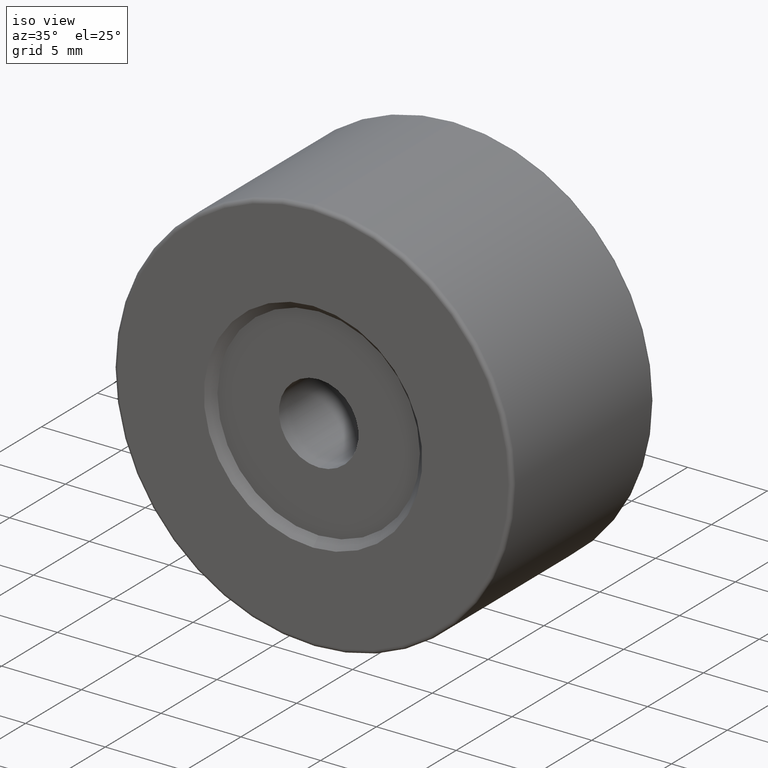
[diagram: clean part render]
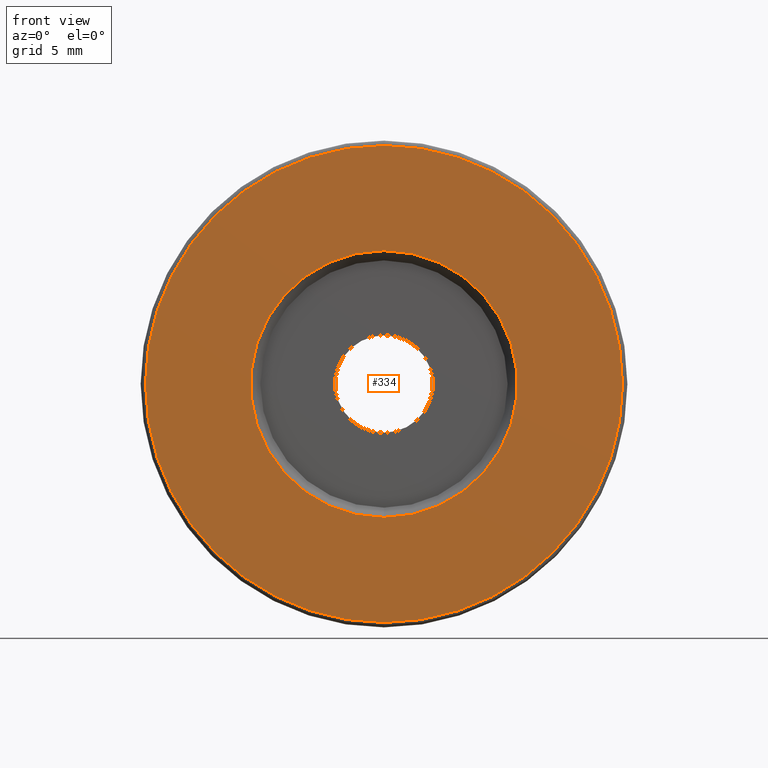
[diagram: tour spotlight — one face highlighted and labeled with its STEP entity id]
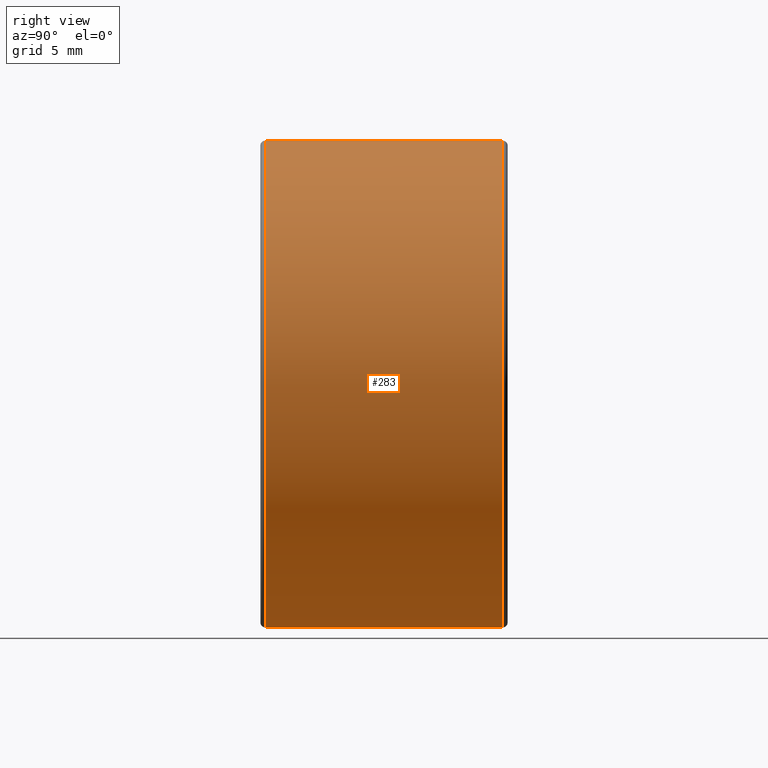
[diagram: tour spotlight — one face highlighted and labeled with its STEP entity id]
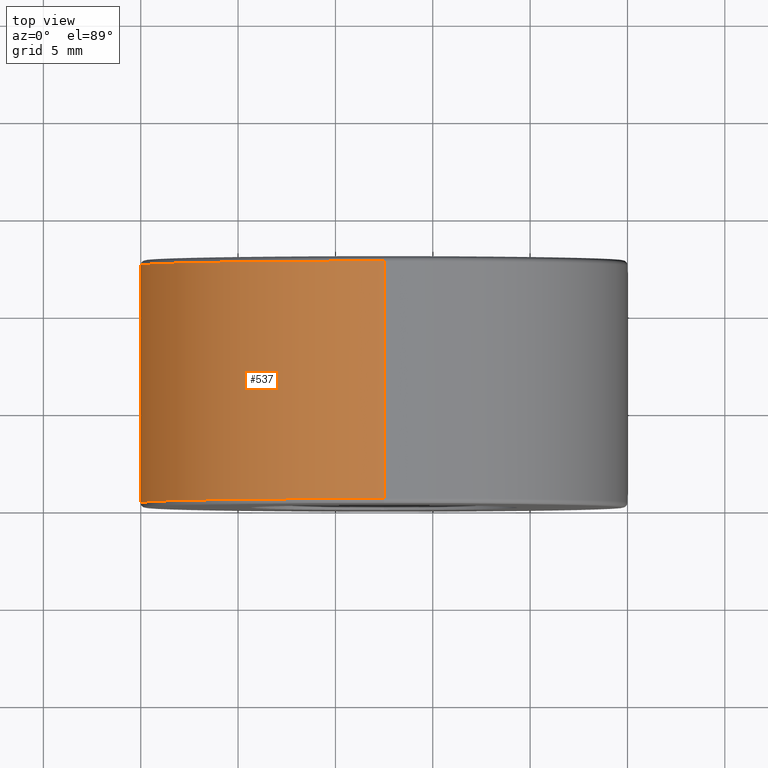
[diagram: tour spotlight — one face highlighted and labeled with its STEP entity id]
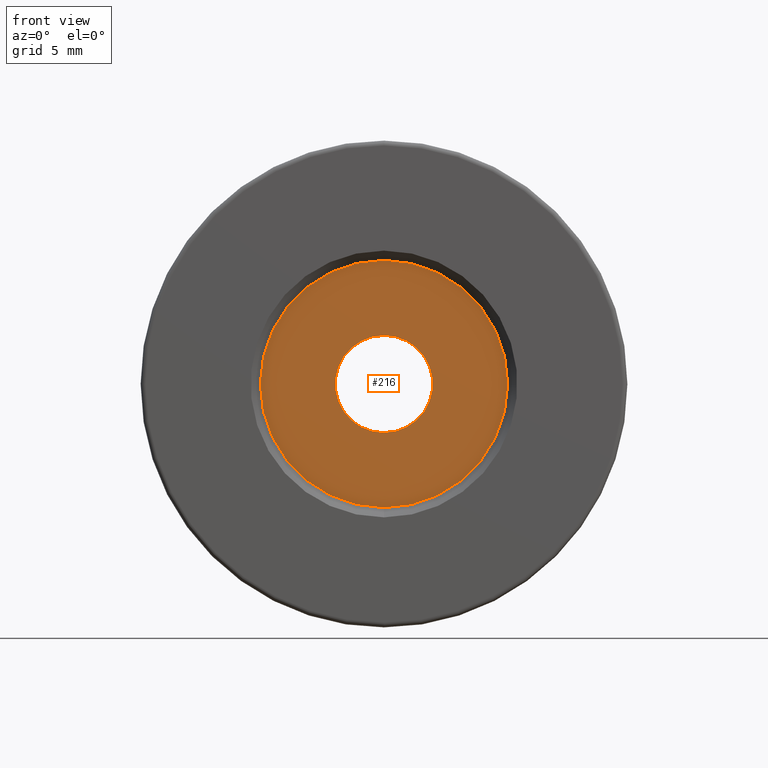
[diagram: tour spotlight — one face highlighted and labeled with its STEP entity id]
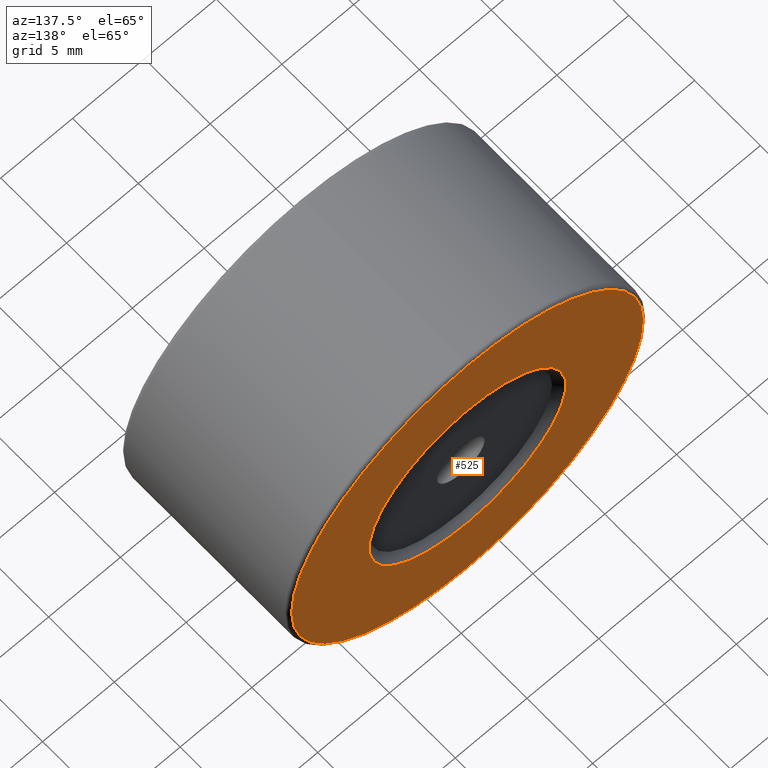
[diagram: tour spotlight — one face highlighted and labeled with its STEP entity id]
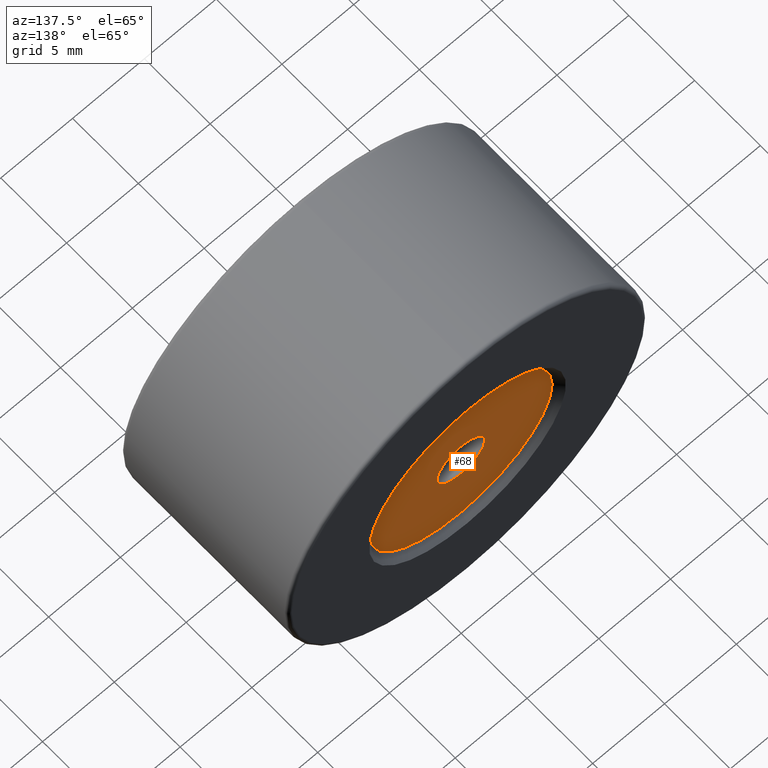
[diagram: tour spotlight — one face highlighted and labeled with its STEP entity id]
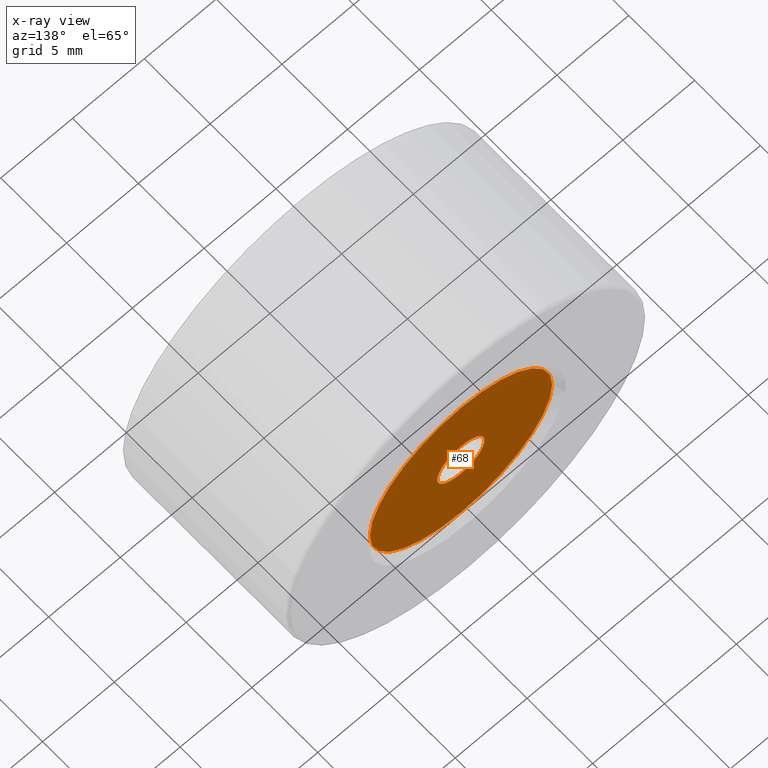
[diagram: x-ray of the same camera — body ghosted, this tour face saturated]
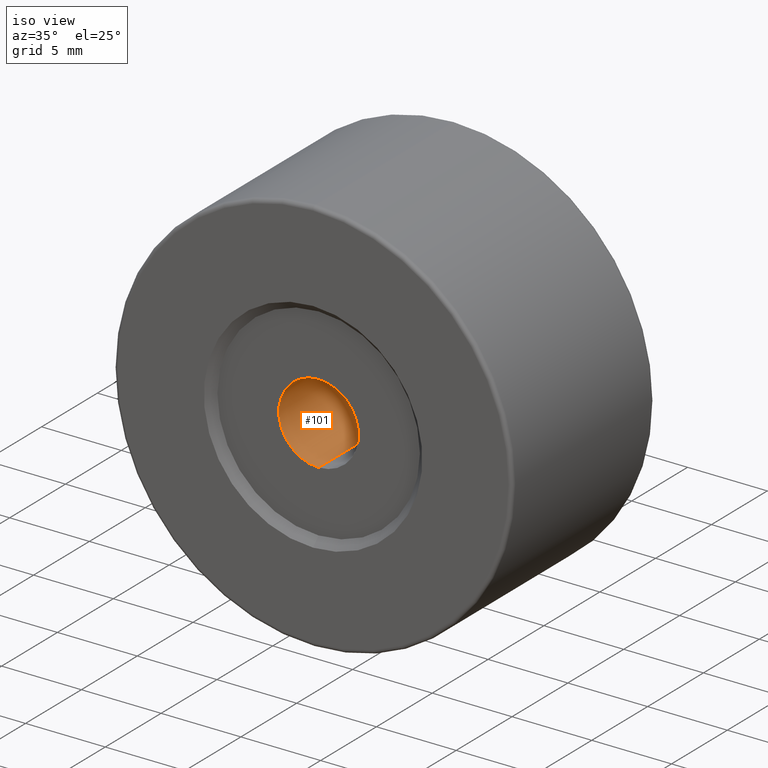
[diagram: tour spotlight — one face highlighted and labeled with its STEP entity id]
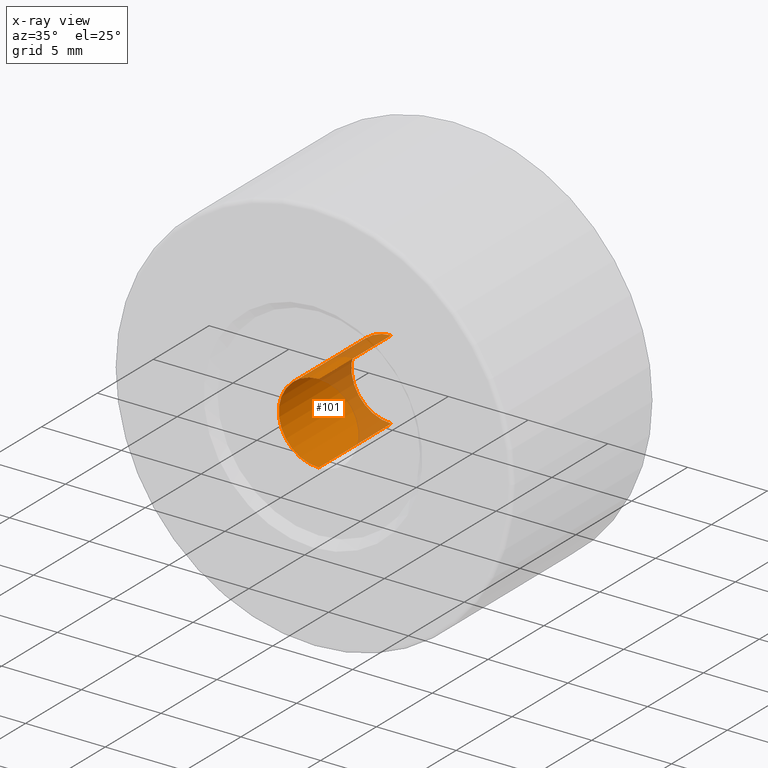
[diagram: x-ray of the same camera — body ghosted, this tour face saturated]
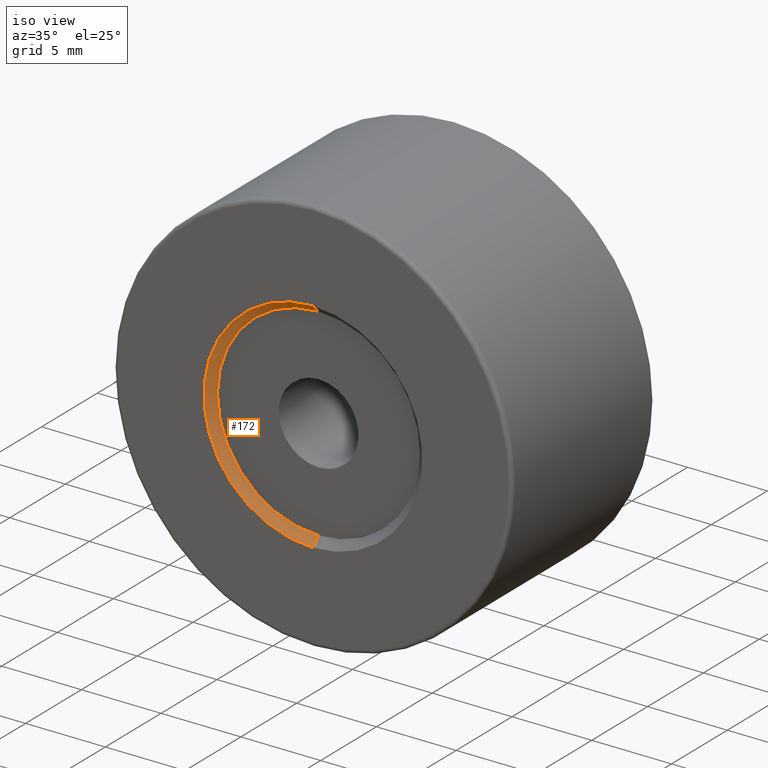
[diagram: tour spotlight — one face highlighted and labeled with its STEP entity id]
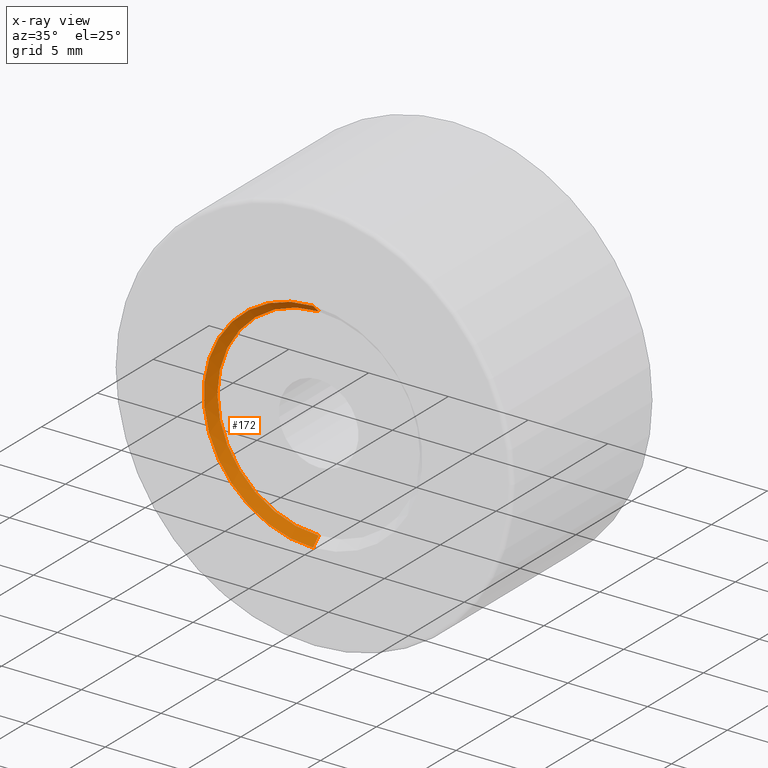
[diagram: x-ray of the same camera — body ghosted, this tour face saturated]
A machine part: a face-by-face anatomy tour. The part has 18 B-rep faces; the first image is the clean iso view, then the 8 largest visible faces are spotlighted one at a time (largest first), each with its STEP entity span.

Face 1 — front view, entity #334. In plain terms, the highlighted planar face has unit normal (0, 1, 0).
Definition (entity closure, byte-faithful):
#17 = CIRCLE ( 'NONE', #402, 6.850000000000008527 ) ;
#48 = AXIS2_PLACEMENT_3D ( 'NONE', #52, #196, #150 ) ;
#52 = CARTESIAN_POINT ( 'NONE',  ( -22.50520183104453409, -4.951747815230611138, 50.00000000000000000 ) ) ;
#54 = ORIENTED_EDGE ( 'NONE', *, *, #470, .T. ) ;
#70 = CIRCLE ( 'NONE', #48, 6.850000000000008527 ) ;
#79 = EDGE_LOOP ( 'NONE', ( #144, #453 ) ) ;
#90 = VERTEX_POINT ( 'NONE', #177 ) ;
#91 = ORIENTED_EDGE ( 'NONE', *, *, #245, .T. ) ;
#104 = PLANE ( 'NONE',  #349 ) ;
#123 = AXIS2_PLACEMENT_3D ( 'NONE', #289, #258, #579 ) ;
#138 = VERTEX_POINT ( 'NONE', #153 ) ;
#144 = ORIENTED_EDGE ( 'NONE', *, *, #547, .T. ) ;
#150 = DIRECTION ( 'NONE',  ( 0.0000000000000000000, 0.0000000000000000000, 1.000000000000000000 ) ) ;
#153 = CARTESIAN_POINT ( 'NONE',  ( -22.50520183104453409, -4.951747815230611138, 56.85000000000000853 ) ) ;
#160 = FACE_BOUND ( 'NONE', #79, .T. ) ;
#177 = CARTESIAN_POINT ( 'NONE',  ( -22.50520183104453409, -4.951747815230611138, 62.25000000000000000 ) ) ;
#178 = EDGE_CURVE ( 'NONE', #138, #499, #70, .T. ) ;
#196 = DIRECTION ( 'NONE',  ( 0.0000000000000000000, 1.000000000000000000, 0.0000000000000000000 ) ) ;
#210 = CARTESIAN_POINT ( 'NONE',  ( -22.50520183104453409, -4.951747815230611138, 50.00000000000000000 ) ) ;
#240 = EDGE_LOOP ( 'NONE', ( #91, #54 ) ) ;
#245 = EDGE_CURVE ( 'NONE', #90, #339, #374, .T. ) ;
#258 = DIRECTION ( 'NONE',  ( -0.0000000000000000000, -1.000000000000000000, -0.0000000000000000000 ) ) ;
#281 = DIRECTION ( 'NONE',  ( 0.0000000000000000000, 1.000000000000000000, 0.0000000000000000000 ) ) ;
#289 = CARTESIAN_POINT ( 'NONE',  ( -22.50520183104453409, -4.951747815230611138, 50.00000000000000000 ) ) ;
#320 = AXIS2_PLACEMENT_3D ( 'NONE', #569, #437, #386 ) ;
#328 = CARTESIAN_POINT ( 'NONE',  ( -22.50520183104453409, -4.951747815230611138, 50.00000000000000000 ) ) ;
#334 = ADVANCED_FACE ( 'NONE', ( #558, #160 ), #104, .F. ) ;
#339 = VERTEX_POINT ( 'NONE', #461 ) ;
#341 = CARTESIAN_POINT ( 'NONE',  ( -22.50520183104453409, -4.951747815230611138, 43.14999999999999147 ) ) ;
#349 = AXIS2_PLACEMENT_3D ( 'NONE', #328, #281, #512 ) ;
#374 = CIRCLE ( 'NONE', #123, 12.24999999999999645 ) ;
#386 = DIRECTION ( 'NONE',  ( 0.0000000000000000000, 0.0000000000000000000, 1.000000000000000000 ) ) ;
#402 = AXIS2_PLACEMENT_3D ( 'NONE', #210, #565, #532 ) ;
#437 = DIRECTION ( 'NONE',  ( -0.0000000000000000000, -1.000000000000000000, -0.0000000000000000000 ) ) ;
#453 = ORIENTED_EDGE ( 'NONE', *, *, #178, .T. ) ;
#461 = CARTESIAN_POINT ( 'NONE',  ( -22.50520183104453409, -4.951747815230611138, 37.75000000000000711 ) ) ;
#470 = EDGE_CURVE ( 'NONE', #339, #90, #521, .T. ) ;
#499 = VERTEX_POINT ( 'NONE', #341 ) ;
#512 = DIRECTION ( 'NONE',  ( 0.0000000000000000000, -0.0000000000000000000, 1.000000000000000000 ) ) ;
#521 = CIRCLE ( 'NONE', #320, 12.24999999999999645 ) ;
#532 = DIRECTION ( 'NONE',  ( 0.0000000000000000000, 0.0000000000000000000, 1.000000000000000000 ) ) ;
#547 = EDGE_CURVE ( 'NONE', #499, #138, #17, .T. ) ;
#558 = FACE_OUTER_BOUND ( 'NONE', #240, .T. ) ;
#565 = DIRECTION ( 'NONE',  ( 0.0000000000000000000, 1.000000000000000000, 0.0000000000000000000 ) ) ;
#569 = CARTESIAN_POINT ( 'NONE',  ( -22.50520183104453409, -4.951747815230611138, 50.00000000000000000 ) ) ;
#579 = DIRECTION ( 'NONE',  ( 0.0000000000000000000, 0.0000000000000000000, 1.000000000000000000 ) ) ;

Face 2 — right view, entity #283. In plain terms, the highlighted cylindrical surface (partial cylindrical patch) has radius 12.5 mm, axis along (-0, -1, -0).
Definition (entity closure, byte-faithful):
#2 = VERTEX_POINT ( 'NONE', #131 ) ;
#13 = DIRECTION ( 'NONE',  ( 0.0000000000000000000, 1.000000000000000000, 0.0000000000000000000 ) ) ;
#21 = LINE ( 'NONE', #56, #271 ) ;
#40 = EDGE_LOOP ( 'NONE', ( #100, #548, #45, #186 ) ) ;
#45 = ORIENTED_EDGE ( 'NONE', *, *, #115, .T. ) ;
#56 = CARTESIAN_POINT ( 'NONE',  ( -22.50520183104453409, 7.748252184769388151, 62.50000000000000000 ) ) ;
#60 = DIRECTION ( 'NONE',  ( 0.0000000000000000000, 0.0000000000000000000, 1.000000000000000000 ) ) ;
#73 = DIRECTION ( 'NONE',  ( -0.0000000000000000000, -1.000000000000000000, -0.0000000000000000000 ) ) ;
#85 = AXIS2_PLACEMENT_3D ( 'NONE', #441, #73, #253 ) ;
#100 = ORIENTED_EDGE ( 'NONE', *, *, #530, .T. ) ;
#106 = DIRECTION ( 'NONE',  ( 0.0000000000000000000, 0.0000000000000000000, -1.000000000000000000 ) ) ;
#115 = EDGE_CURVE ( 'NONE', #136, #180, #382, .T. ) ;
#131 = CARTESIAN_POINT ( 'NONE',  ( -22.50520183104453409, 7.498252184769387263, 62.50000000000000000 ) ) ;
#136 = VERTEX_POINT ( 'NONE', #201 ) ;
#180 = VERTEX_POINT ( 'NONE', #326 ) ;
#186 = ORIENTED_EDGE ( 'NONE', *, *, #377, .F. ) ;
#199 = LINE ( 'NONE', #370, #502 ) ;
#201 = CARTESIAN_POINT ( 'NONE',  ( -22.50520183104453409, -4.701747815230611138, 62.50000000000000000 ) ) ;
#253 = DIRECTION ( 'NONE',  ( 0.0000000000000000000, 0.0000000000000000000, 1.000000000000000000 ) ) ;
#271 = VECTOR ( 'NONE', #287, 1000.000000000000000 ) ;
#283 = ADVANCED_FACE ( 'NONE', ( #373 ), #429, .T. ) ;
#284 = DIRECTION ( 'NONE',  ( -0.0000000000000000000, -1.000000000000000000, -0.0000000000000000000 ) ) ;
#285 = AXIS2_PLACEMENT_3D ( 'NONE', #338, #13, #60 ) ;
#287 = DIRECTION ( 'NONE',  ( -0.0000000000000000000, -1.000000000000000000, -0.0000000000000000000 ) ) ;
#293 = EDGE_CURVE ( 'NONE', #2, #136, #21, .T. ) ;
#323 = CARTESIAN_POINT ( 'NONE',  ( -22.50520183104453409, 7.748252184769388151, 50.00000000000000000 ) ) ;
#326 = CARTESIAN_POINT ( 'NONE',  ( -22.50520183104453409, -4.701747815230611138, 37.50000000000000711 ) ) ;
#338 = CARTESIAN_POINT ( 'NONE',  ( -22.50520183104453409, -4.701747815230611138, 50.00000000000000000 ) ) ;
#353 = CARTESIAN_POINT ( 'NONE',  ( -22.50520183104453409, 7.498252184769387263, 37.50000000000000711 ) ) ;
#370 = CARTESIAN_POINT ( 'NONE',  ( -22.50520183104453409, 7.748252184769388151, 37.50000000000000711 ) ) ;
#373 = FACE_OUTER_BOUND ( 'NONE', #40, .T. ) ;
#377 = EDGE_CURVE ( 'NONE', #545, #180, #199, .T. ) ;
#382 = CIRCLE ( 'NONE', #285, 12.49999999999999645 ) ;
#429 = CYLINDRICAL_SURFACE ( 'NONE', #475, 12.49999999999999645 ) ;
#441 = CARTESIAN_POINT ( 'NONE',  ( -22.50520183104453409, 7.498252184769387263, 50.00000000000000000 ) ) ;
#469 = CIRCLE ( 'NONE', #85, 12.49999999999999645 ) ;
#475 = AXIS2_PLACEMENT_3D ( 'NONE', #323, #554, #106 ) ;
#502 = VECTOR ( 'NONE', #284, 1000.000000000000000 ) ;
#530 = EDGE_CURVE ( 'NONE', #545, #2, #469, .T. ) ;
#545 = VERTEX_POINT ( 'NONE', #353 ) ;
#548 = ORIENTED_EDGE ( 'NONE', *, *, #293, .T. ) ;
#554 = DIRECTION ( 'NONE',  ( -0.0000000000000000000, -1.000000000000000000, -0.0000000000000000000 ) ) ;

Face 3 — top view, entity #537. In plain terms, the highlighted cylindrical surface (partial cylindrical patch) has radius 12.5 mm, axis along (-0, -1, -0).
Definition (entity closure, byte-faithful):
#2 = VERTEX_POINT ( 'NONE', #131 ) ;
#21 = LINE ( 'NONE', #56, #271 ) ;
#23 = DIRECTION ( 'NONE',  ( -0.0000000000000000000, -1.000000000000000000, -0.0000000000000000000 ) ) ;
#38 = DIRECTION ( 'NONE',  ( 0.0000000000000000000, 1.000000000000000000, 0.0000000000000000000 ) ) ;
#56 = CARTESIAN_POINT ( 'NONE',  ( -22.50520183104453409, 7.748252184769388151, 62.50000000000000000 ) ) ;
#69 = DIRECTION ( 'NONE',  ( -0.0000000000000000000, -1.000000000000000000, -0.0000000000000000000 ) ) ;
#72 = AXIS2_PLACEMENT_3D ( 'NONE', #337, #38, #395 ) ;
#131 = CARTESIAN_POINT ( 'NONE',  ( -22.50520183104453409, 7.498252184769387263, 62.50000000000000000 ) ) ;
#136 = VERTEX_POINT ( 'NONE', #201 ) ;
#167 = FACE_OUTER_BOUND ( 'NONE', #544, .T. ) ;
#176 = CARTESIAN_POINT ( 'NONE',  ( -22.50520183104453409, 7.748252184769388151, 50.00000000000000000 ) ) ;
#180 = VERTEX_POINT ( 'NONE', #326 ) ;
#195 = ORIENTED_EDGE ( 'NONE', *, *, #551, .T. ) ;
#199 = LINE ( 'NONE', #370, #502 ) ;
#201 = CARTESIAN_POINT ( 'NONE',  ( -22.50520183104453409, -4.701747815230611138, 62.50000000000000000 ) ) ;
#224 = AXIS2_PLACEMENT_3D ( 'NONE', #176, #23, #444 ) ;
#265 = ORIENTED_EDGE ( 'NONE', *, *, #377, .T. ) ;
#271 = VECTOR ( 'NONE', #287, 1000.000000000000000 ) ;
#284 = DIRECTION ( 'NONE',  ( -0.0000000000000000000, -1.000000000000000000, -0.0000000000000000000 ) ) ;
#287 = DIRECTION ( 'NONE',  ( -0.0000000000000000000, -1.000000000000000000, -0.0000000000000000000 ) ) ;
#293 = EDGE_CURVE ( 'NONE', #2, #136, #21, .T. ) ;
#326 = CARTESIAN_POINT ( 'NONE',  ( -22.50520183104453409, -4.701747815230611138, 37.50000000000000711 ) ) ;
#337 = CARTESIAN_POINT ( 'NONE',  ( -22.50520183104453409, -4.701747815230611138, 50.00000000000000000 ) ) ;
#343 = DIRECTION ( 'NONE',  ( 0.0000000000000000000, 0.0000000000000000000, 1.000000000000000000 ) ) ;
#345 = ORIENTED_EDGE ( 'NONE', *, *, #492, .T. ) ;
#353 = CARTESIAN_POINT ( 'NONE',  ( -22.50520183104453409, 7.498252184769387263, 37.50000000000000711 ) ) ;
#361 = CIRCLE ( 'NONE', #72, 12.49999999999999645 ) ;
#370 = CARTESIAN_POINT ( 'NONE',  ( -22.50520183104453409, 7.748252184769388151, 37.50000000000000711 ) ) ;
#377 = EDGE_CURVE ( 'NONE', #545, #180, #199, .T. ) ;
#395 = DIRECTION ( 'NONE',  ( 0.0000000000000000000, 0.0000000000000000000, 1.000000000000000000 ) ) ;
#419 = CIRCLE ( 'NONE', #426, 12.49999999999999645 ) ;
#426 = AXIS2_PLACEMENT_3D ( 'NONE', #562, #69, #343 ) ;
#431 = CYLINDRICAL_SURFACE ( 'NONE', #224, 12.49999999999999645 ) ;
#444 = DIRECTION ( 'NONE',  ( 0.0000000000000000000, 0.0000000000000000000, -1.000000000000000000 ) ) ;
#479 = ORIENTED_EDGE ( 'NONE', *, *, #293, .F. ) ;
#492 = EDGE_CURVE ( 'NONE', #180, #136, #361, .T. ) ;
#502 = VECTOR ( 'NONE', #284, 1000.000000000000000 ) ;
#537 = ADVANCED_FACE ( 'NONE', ( #167 ), #431, .T. ) ;
#544 = EDGE_LOOP ( 'NONE', ( #479, #195, #265, #345 ) ) ;
#545 = VERTEX_POINT ( 'NONE', #353 ) ;
#551 = EDGE_CURVE ( 'NONE', #2, #545, #419, .T. ) ;
#562 = CARTESIAN_POINT ( 'NONE',  ( -22.50520183104453409, 7.498252184769387263, 50.00000000000000000 ) ) ;

Face 4 — front view, entity #216. In plain terms, the highlighted planar face has unit normal (0, -1, 0).
Definition (entity closure, byte-faithful):
#15 = CARTESIAN_POINT ( 'NONE',  ( -22.50520183104453409, -4.451747815230611138, 50.00000000000000000 ) ) ;
#16 = CIRCLE ( 'NONE', #318, 2.499999999999995115 ) ;
#37 = AXIS2_PLACEMENT_3D ( 'NONE', #477, #76, #292 ) ;
#71 = CIRCLE ( 'NONE', #329, 6.350000000000001421 ) ;
#76 = DIRECTION ( 'NONE',  ( -0.0000000000000000000, 1.000000000000000000, -0.0000000000000000000 ) ) ;
#108 = CARTESIAN_POINT ( 'NONE',  ( -22.50520183104453409, -4.451747815230611138, 47.50000000000000711 ) ) ;
#135 = DIRECTION ( 'NONE',  ( 0.0000000000000000000, 0.0000000000000000000, 1.000000000000000000 ) ) ;
#152 = ORIENTED_EDGE ( 'NONE', *, *, #237, .F. ) ;
#154 = CARTESIAN_POINT ( 'NONE',  ( -22.50520183104453409, -4.451747815230611138, 50.00000000000000000 ) ) ;
#161 = CIRCLE ( 'NONE', #264, 2.499999999999995115 ) ;
#206 = DIRECTION ( 'NONE',  ( -0.0000000000000000000, 1.000000000000000000, -0.0000000000000000000 ) ) ;
#208 = DIRECTION ( 'NONE',  ( 0.0000000000000000000, -1.000000000000000000, 0.0000000000000000000 ) ) ;
#216 = ADVANCED_FACE ( 'NONE', ( #294, #476 ), #394, .T. ) ;
#231 = ORIENTED_EDGE ( 'NONE', *, *, #327, .F. ) ;
#233 = ORIENTED_EDGE ( 'NONE', *, *, #458, .F. ) ;
#237 = EDGE_CURVE ( 'NONE', #304, #404, #161, .T. ) ;
#264 = AXIS2_PLACEMENT_3D ( 'NONE', #391, #300, #478 ) ;
#269 = VERTEX_POINT ( 'NONE', #428 ) ;
#292 = DIRECTION ( 'NONE',  ( 0.0000000000000000000, 0.0000000000000000000, 1.000000000000000000 ) ) ;
#294 = FACE_BOUND ( 'NONE', #439, .T. ) ;
#295 = AXIS2_PLACEMENT_3D ( 'NONE', #483, #535, #135 ) ;
#300 = DIRECTION ( 'NONE',  ( 0.0000000000000000000, -1.000000000000000000, 0.0000000000000000000 ) ) ;
#304 = VERTEX_POINT ( 'NONE', #108 ) ;
#318 = AXIS2_PLACEMENT_3D ( 'NONE', #154, #208, #471 ) ;
#319 = ORIENTED_EDGE ( 'NONE', *, *, #415, .F. ) ;
#327 = EDGE_CURVE ( 'NONE', #404, #304, #16, .T. ) ;
#329 = AXIS2_PLACEMENT_3D ( 'NONE', #15, #206, #378 ) ;
#369 = VERTEX_POINT ( 'NONE', #557 ) ;
#378 = DIRECTION ( 'NONE',  ( 0.0000000000000000000, 0.0000000000000000000, 1.000000000000000000 ) ) ;
#391 = CARTESIAN_POINT ( 'NONE',  ( -22.50520183104453409, -4.451747815230611138, 50.00000000000000000 ) ) ;
#394 = PLANE ( 'NONE',  #295 ) ;
#404 = VERTEX_POINT ( 'NONE', #421 ) ;
#406 = EDGE_LOOP ( 'NONE', ( #233, #319 ) ) ;
#415 = EDGE_CURVE ( 'NONE', #269, #369, #71, .T. ) ;
#421 = CARTESIAN_POINT ( 'NONE',  ( -22.50520183104453409, -4.451747815230611138, 52.50000000000000000 ) ) ;
#428 = CARTESIAN_POINT ( 'NONE',  ( -22.50520183104453409, -4.451747815230611138, 56.35000000000000142 ) ) ;
#434 = CIRCLE ( 'NONE', #37, 6.350000000000001421 ) ;
#439 = EDGE_LOOP ( 'NONE', ( #152, #231 ) ) ;
#458 = EDGE_CURVE ( 'NONE', #369, #269, #434, .T. ) ;
#471 = DIRECTION ( 'NONE',  ( 0.0000000000000000000, 0.0000000000000000000, -1.000000000000000000 ) ) ;
#476 = FACE_OUTER_BOUND ( 'NONE', #406, .T. ) ;
#477 = CARTESIAN_POINT ( 'NONE',  ( -22.50520183104453409, -4.451747815230611138, 50.00000000000000000 ) ) ;
#478 = DIRECTION ( 'NONE',  ( 0.0000000000000000000, 0.0000000000000000000, -1.000000000000000000 ) ) ;
#483 = CARTESIAN_POINT ( 'NONE',  ( -22.50520183104453409, -4.451747815230611138, 50.00000000000000000 ) ) ;
#535 = DIRECTION ( 'NONE',  ( 0.0000000000000000000, -1.000000000000000000, 0.0000000000000000000 ) ) ;
#557 = CARTESIAN_POINT ( 'NONE',  ( -22.50520183104453409, -4.451747815230611138, 43.64999999999999858 ) ) ;

Face 5 — auxiliary view, entity #525. In plain terms, the highlighted planar face has unit normal (0, 1, 0).
Definition (entity closure, byte-faithful):
#1 = ORIENTED_EDGE ( 'NONE', *, *, #139, .T. ) ;
#8 = EDGE_CURVE ( 'NONE', #413, #174, #272, .T. ) ;
#11 = CARTESIAN_POINT ( 'NONE',  ( -22.50520183104453409, 7.748252184769388151, 56.85000000000000853 ) ) ;
#14 = DIRECTION ( 'NONE',  ( 0.0000000000000000000, 0.0000000000000000000, 1.000000000000000000 ) ) ;
#30 = ORIENTED_EDGE ( 'NONE', *, *, #8, .T. ) ;
#31 = CIRCLE ( 'NONE', #364, 6.850000000000008527 ) ;
#43 = EDGE_LOOP ( 'NONE', ( #352, #1 ) ) ;
#49 = CIRCLE ( 'NONE', #555, 6.850000000000008527 ) ;
#65 = AXIS2_PLACEMENT_3D ( 'NONE', #472, #473, #221 ) ;
#105 = DIRECTION ( 'NONE',  ( -0.0000000000000000000, -1.000000000000000000, -0.0000000000000000000 ) ) ;
#133 = FACE_BOUND ( 'NONE', #43, .T. ) ;
#139 = EDGE_CURVE ( 'NONE', #190, #357, #31, .T. ) ;
#146 = AXIS2_PLACEMENT_3D ( 'NONE', #305, #215, #408 ) ;
#157 = DIRECTION ( 'NONE',  ( -0.0000000000000000000, -1.000000000000000000, -0.0000000000000000000 ) ) ;
#174 = VERTEX_POINT ( 'NONE', #344 ) ;
#190 = VERTEX_POINT ( 'NONE', #480 ) ;
#215 = DIRECTION ( 'NONE',  ( 0.0000000000000000000, 1.000000000000000000, 0.0000000000000000000 ) ) ;
#221 = DIRECTION ( 'NONE',  ( 0.0000000000000000000, -0.0000000000000000000, 1.000000000000000000 ) ) ;
#244 = CARTESIAN_POINT ( 'NONE',  ( -22.50520183104453409, 7.748252184769388151, 50.00000000000000000 ) ) ;
#246 = DIRECTION ( 'NONE',  ( 0.0000000000000000000, 1.000000000000000000, 0.0000000000000000000 ) ) ;
#259 = PLANE ( 'NONE',  #65 ) ;
#272 = CIRCLE ( 'NONE', #146, 12.24999999999999645 ) ;
#305 = CARTESIAN_POINT ( 'NONE',  ( -22.50520183104453409, 7.748252184769388151, 50.00000000000000000 ) ) ;
#307 = ORIENTED_EDGE ( 'NONE', *, *, #381, .T. ) ;
#340 = EDGE_CURVE ( 'NONE', #357, #190, #49, .T. ) ;
#344 = CARTESIAN_POINT ( 'NONE',  ( -22.50520183104453409, 7.748252184769388151, 62.25000000000000000 ) ) ;
#352 = ORIENTED_EDGE ( 'NONE', *, *, #340, .T. ) ;
#357 = VERTEX_POINT ( 'NONE', #11 ) ;
#364 = AXIS2_PLACEMENT_3D ( 'NONE', #509, #105, #372 ) ;
#366 = EDGE_LOOP ( 'NONE', ( #307, #30 ) ) ;
#372 = DIRECTION ( 'NONE',  ( 0.0000000000000000000, 0.0000000000000000000, 1.000000000000000000 ) ) ;
#381 = EDGE_CURVE ( 'NONE', #174, #413, #454, .T. ) ;
#408 = DIRECTION ( 'NONE',  ( 0.0000000000000000000, 0.0000000000000000000, 1.000000000000000000 ) ) ;
#413 = VERTEX_POINT ( 'NONE', #423 ) ;
#423 = CARTESIAN_POINT ( 'NONE',  ( -22.50520183104453409, 7.748252184769388151, 37.75000000000000711 ) ) ;
#435 = FACE_OUTER_BOUND ( 'NONE', #366, .T. ) ;
#454 = CIRCLE ( 'NONE', #527, 12.24999999999999645 ) ;
#472 = CARTESIAN_POINT ( 'NONE',  ( -22.50520183104453409, 7.748252184769388151, 50.00000000000000000 ) ) ;
#473 = DIRECTION ( 'NONE',  ( 0.0000000000000000000, 1.000000000000000000, 0.0000000000000000000 ) ) ;
#480 = CARTESIAN_POINT ( 'NONE',  ( -22.50520183104453409, 7.748252184769388151, 43.14999999999999147 ) ) ;
#509 = CARTESIAN_POINT ( 'NONE',  ( -22.50520183104453409, 7.748252184769388151, 50.00000000000000000 ) ) ;
#511 = DIRECTION ( 'NONE',  ( 0.0000000000000000000, 0.0000000000000000000, 1.000000000000000000 ) ) ;
#525 = ADVANCED_FACE ( 'NONE', ( #435, #133 ), #259, .T. ) ;
#527 = AXIS2_PLACEMENT_3D ( 'NONE', #552, #246, #511 ) ;
#552 = CARTESIAN_POINT ( 'NONE',  ( -22.50520183104453409, 7.748252184769388151, 50.00000000000000000 ) ) ;
#555 = AXIS2_PLACEMENT_3D ( 'NONE', #244, #157, #14 ) ;

Face 6 — auxiliary view, entity #68. An x-ray twin of the same camera follows (body ghosted, this face saturated) — the face is partly hidden behind the body. In plain terms, the highlighted planar face has unit normal (0, 1, 0).
Definition (entity closure, byte-faithful):
#7 = CIRCLE ( 'NONE', #351, 1.649999999999998579 ) ;
#22 = ORIENTED_EDGE ( 'NONE', *, *, #513, .F. ) ;
#27 = DIRECTION ( 'NONE',  ( 0.0000000000000000000, 0.0000000000000000000, 1.000000000000000000 ) ) ;
#33 = VERTEX_POINT ( 'NONE', #228 ) ;
#35 = FACE_OUTER_BOUND ( 'NONE', #430, .T. ) ;
#39 = DIRECTION ( 'NONE',  ( 0.0000000000000000000, -0.0000000000000000000, 1.000000000000000000 ) ) ;
#42 = AXIS2_PLACEMENT_3D ( 'NONE', #171, #482, #39 ) ;
#55 = VERTEX_POINT ( 'NONE', #77 ) ;
#68 = ADVANCED_FACE ( 'NONE', ( #442, #35 ), #222, .T. ) ;
#75 = CARTESIAN_POINT ( 'NONE',  ( -22.50520183104453409, 7.248252184769387263, 48.35000000000000142 ) ) ;
#77 = CARTESIAN_POINT ( 'NONE',  ( -22.50520183104453409, 7.248252184769387263, 56.35000000000000142 ) ) ;
#107 = CIRCLE ( 'NONE', #274, 1.649999999999998579 ) ;
#127 = DIRECTION ( 'NONE',  ( 0.0000000000000000000, 0.0000000000000000000, 1.000000000000000000 ) ) ;
#147 = AXIS2_PLACEMENT_3D ( 'NONE', #170, #481, #127 ) ;
#166 = VERTEX_POINT ( 'NONE', #255 ) ;
#170 = CARTESIAN_POINT ( 'NONE',  ( -22.50520183104453409, 7.248252184769387263, 50.00000000000000000 ) ) ;
#171 = CARTESIAN_POINT ( 'NONE',  ( -22.50520183104453409, 7.248252184769387263, 50.00000000000000000 ) ) ;
#191 = VERTEX_POINT ( 'NONE', #75 ) ;
#200 = EDGE_CURVE ( 'NONE', #55, #33, #270, .T. ) ;
#219 = DIRECTION ( 'NONE',  ( 0.0000000000000000000, 1.000000000000000000, 0.0000000000000000000 ) ) ;
#222 = PLANE ( 'NONE',  #42 ) ;
#226 = DIRECTION ( 'NONE',  ( 0.0000000000000000000, 1.000000000000000000, 0.0000000000000000000 ) ) ;
#228 = CARTESIAN_POINT ( 'NONE',  ( -22.50520183104453409, 7.248252184769387263, 43.64999999999999858 ) ) ;
#242 = EDGE_LOOP ( 'NONE', ( #22, #536 ) ) ;
#255 = CARTESIAN_POINT ( 'NONE',  ( -22.50520183104453409, 7.248252184769387263, 51.64999999999999858 ) ) ;
#270 = CIRCLE ( 'NONE', #424, 6.350000000000001421 ) ;
#274 = AXIS2_PLACEMENT_3D ( 'NONE', #522, #226, #528 ) ;
#290 = CARTESIAN_POINT ( 'NONE',  ( -22.50520183104453409, 7.248252184769387263, 50.00000000000000000 ) ) ;
#351 = AXIS2_PLACEMENT_3D ( 'NONE', #290, #523, #389 ) ;
#389 = DIRECTION ( 'NONE',  ( 0.0000000000000000000, 0.0000000000000000000, 1.000000000000000000 ) ) ;
#392 = ORIENTED_EDGE ( 'NONE', *, *, #503, .T. ) ;
#416 = ORIENTED_EDGE ( 'NONE', *, *, #200, .T. ) ;
#424 = AXIS2_PLACEMENT_3D ( 'NONE', #440, #219, #27 ) ;
#430 = EDGE_LOOP ( 'NONE', ( #416, #392 ) ) ;
#440 = CARTESIAN_POINT ( 'NONE',  ( -22.50520183104453409, 7.248252184769387263, 50.00000000000000000 ) ) ;
#442 = FACE_BOUND ( 'NONE', #242, .T. ) ;
#481 = DIRECTION ( 'NONE',  ( 0.0000000000000000000, 1.000000000000000000, 0.0000000000000000000 ) ) ;
#482 = DIRECTION ( 'NONE',  ( 0.0000000000000000000, 1.000000000000000000, 0.0000000000000000000 ) ) ;
#494 = CIRCLE ( 'NONE', #147, 6.350000000000001421 ) ;
#503 = EDGE_CURVE ( 'NONE', #33, #55, #494, .T. ) ;
#510 = EDGE_CURVE ( 'NONE', #191, #166, #107, .T. ) ;
#513 = EDGE_CURVE ( 'NONE', #166, #191, #7, .T. ) ;
#522 = CARTESIAN_POINT ( 'NONE',  ( -22.50520183104453409, 7.248252184769387263, 50.00000000000000000 ) ) ;
#523 = DIRECTION ( 'NONE',  ( 0.0000000000000000000, 1.000000000000000000, 0.0000000000000000000 ) ) ;
#528 = DIRECTION ( 'NONE',  ( 0.0000000000000000000, 0.0000000000000000000, 1.000000000000000000 ) ) ;
#536 = ORIENTED_EDGE ( 'NONE', *, *, #510, .F. ) ;

Face 7 — iso view, entity #101. An x-ray twin of the same camera follows (body ghosted, this face saturated) — the face is partly hidden behind the body. In plain terms, the highlighted cylindrical surface (partial cylindrical patch) has radius 2.5 mm, axis along (-0, -1, -0).
Definition (entity closure, byte-faithful):
#5 = ORIENTED_EDGE ( 'NONE', *, *, #81, .T. ) ;
#16 = CIRCLE ( 'NONE', #318, 2.499999999999995115 ) ;
#32 = DIRECTION ( 'NONE',  ( -0.0000000000000000000, -1.000000000000000000, -0.0000000000000000000 ) ) ;
#61 = DIRECTION ( 'NONE',  ( -0.0000000000000000000, -1.000000000000000000, -0.0000000000000000000 ) ) ;
#81 = EDGE_CURVE ( 'NONE', #213, #404, #529, .T. ) ;
#83 = DIRECTION ( 'NONE',  ( 0.0000000000000000000, 0.0000000000000000000, -1.000000000000000000 ) ) ;
#88 = ORIENTED_EDGE ( 'NONE', *, *, #354, .F. ) ;
#101 = ADVANCED_FACE ( 'NONE', ( #306 ), #128, .F. ) ;
#103 = AXIS2_PLACEMENT_3D ( 'NONE', #383, #420, #158 ) ;
#108 = CARTESIAN_POINT ( 'NONE',  ( -22.50520183104453409, -4.451747815230611138, 47.50000000000000711 ) ) ;
#121 = CIRCLE ( 'NONE', #103, 2.499999999999995115 ) ;
#128 = CYLINDRICAL_SURFACE ( 'NONE', #214, 2.499999999999995115 ) ;
#154 = CARTESIAN_POINT ( 'NONE',  ( -22.50520183104453409, -4.451747815230611138, 50.00000000000000000 ) ) ;
#158 = DIRECTION ( 'NONE',  ( 0.0000000000000000000, 0.0000000000000000000, -1.000000000000000000 ) ) ;
#208 = DIRECTION ( 'NONE',  ( 0.0000000000000000000, -1.000000000000000000, 0.0000000000000000000 ) ) ;
#213 = VERTEX_POINT ( 'NONE', #517 ) ;
#214 = AXIS2_PLACEMENT_3D ( 'NONE', #488, #32, #83 ) ;
#227 = VERTEX_POINT ( 'NONE', #298 ) ;
#256 = EDGE_CURVE ( 'NONE', #213, #227, #121, .T. ) ;
#297 = VECTOR ( 'NONE', #61, 1000.000000000000000 ) ;
#298 = CARTESIAN_POINT ( 'NONE',  ( -22.50520183104453409, 2.048252184769387974, 47.50000000000000711 ) ) ;
#304 = VERTEX_POINT ( 'NONE', #108 ) ;
#306 = FACE_OUTER_BOUND ( 'NONE', #506, .T. ) ;
#318 = AXIS2_PLACEMENT_3D ( 'NONE', #154, #208, #471 ) ;
#327 = EDGE_CURVE ( 'NONE', #404, #304, #16, .T. ) ;
#354 = EDGE_CURVE ( 'NONE', #227, #304, #379, .T. ) ;
#363 = ORIENTED_EDGE ( 'NONE', *, *, #327, .T. ) ;
#379 = LINE ( 'NONE', #464, #297 ) ;
#383 = CARTESIAN_POINT ( 'NONE',  ( -22.50520183104453409, 2.048252184769387974, 50.00000000000000000 ) ) ;
#404 = VERTEX_POINT ( 'NONE', #421 ) ;
#420 = DIRECTION ( 'NONE',  ( -0.0000000000000000000, -1.000000000000000000, -0.0000000000000000000 ) ) ;
#421 = CARTESIAN_POINT ( 'NONE',  ( -22.50520183104453409, -4.451747815230611138, 52.50000000000000000 ) ) ;
#464 = CARTESIAN_POINT ( 'NONE',  ( -22.50520183104453409, -4.951747815230611138, 47.50000000000000711 ) ) ;
#471 = DIRECTION ( 'NONE',  ( 0.0000000000000000000, 0.0000000000000000000, -1.000000000000000000 ) ) ;
#488 = CARTESIAN_POINT ( 'NONE',  ( -22.50520183104453409, -4.951747815230611138, 50.00000000000000000 ) ) ;
#506 = EDGE_LOOP ( 'NONE', ( #578, #5, #363, #88 ) ) ;
#517 = CARTESIAN_POINT ( 'NONE',  ( -22.50520183104453409, 2.048252184769387974, 52.50000000000000000 ) ) ;
#529 = LINE ( 'NONE', #575, #577 ) ;
#533 = DIRECTION ( 'NONE',  ( -0.0000000000000000000, -1.000000000000000000, -0.0000000000000000000 ) ) ;
#575 = CARTESIAN_POINT ( 'NONE',  ( -22.50520183104453409, -4.951747815230611138, 52.50000000000000000 ) ) ;
#577 = VECTOR ( 'NONE', #533, 1000.000000000000000 ) ;
#578 = ORIENTED_EDGE ( 'NONE', *, *, #256, .F. ) ;

Face 8 — iso view, entity #172. An x-ray twin of the same camera follows (body ghosted, this face saturated) — the face is partly hidden behind the body. In plain terms, the highlighted conical surface has half-angle 45 deg.
Definition (entity closure, byte-faithful):
#17 = CIRCLE ( 'NONE', #402, 6.850000000000008527 ) ;
#18 = EDGE_CURVE ( 'NONE', #269, #138, #393, .T. ) ;
#29 = CARTESIAN_POINT ( 'NONE',  ( -22.50520183104453409, -4.951747815230611138, 50.00000000000000000 ) ) ;
#37 = AXIS2_PLACEMENT_3D ( 'NONE', #477, #76, #292 ) ;
#59 = LINE ( 'NONE', #202, #248 ) ;
#76 = DIRECTION ( 'NONE',  ( -0.0000000000000000000, 1.000000000000000000, -0.0000000000000000000 ) ) ;
#112 = DIRECTION ( 'NONE',  ( 0.0000000000000000000, -0.7071067811865493491, -0.7071067811865456854 ) ) ;
#138 = VERTEX_POINT ( 'NONE', #153 ) ;
#153 = CARTESIAN_POINT ( 'NONE',  ( -22.50520183104453409, -4.951747815230611138, 56.85000000000000853 ) ) ;
#172 = ADVANCED_FACE ( 'NONE', ( #436 ), #375, .F. ) ;
#202 = CARTESIAN_POINT ( 'NONE',  ( -22.50520183104453409, -4.951747815230611138, 43.14999999999999147 ) ) ;
#210 = CARTESIAN_POINT ( 'NONE',  ( -22.50520183104453409, -4.951747815230611138, 50.00000000000000000 ) ) ;
#248 = VECTOR ( 'NONE', #112, 1000.000000000000000 ) ;
#269 = VERTEX_POINT ( 'NONE', #428 ) ;
#292 = DIRECTION ( 'NONE',  ( 0.0000000000000000000, 0.0000000000000000000, 1.000000000000000000 ) ) ;
#341 = CARTESIAN_POINT ( 'NONE',  ( -22.50520183104453409, -4.951747815230611138, 43.14999999999999147 ) ) ;
#348 = AXIS2_PLACEMENT_3D ( 'NONE', #29, #390, #566 ) ;
#369 = VERTEX_POINT ( 'NONE', #557 ) ;
#375 = CONICAL_SURFACE ( 'NONE', #348, 6.850000000000008527, 0.7853981633974457255 ) ;
#376 = VECTOR ( 'NONE', #526, 1000.000000000000000 ) ;
#390 = DIRECTION ( 'NONE',  ( -0.0000000000000000000, -1.000000000000000000, -0.0000000000000000000 ) ) ;
#393 = LINE ( 'NONE', #448, #376 ) ;
#400 = EDGE_CURVE ( 'NONE', #369, #499, #59, .T. ) ;
#402 = AXIS2_PLACEMENT_3D ( 'NONE', #210, #565, #532 ) ;
#428 = CARTESIAN_POINT ( 'NONE',  ( -22.50520183104453409, -4.451747815230611138, 56.35000000000000142 ) ) ;
#434 = CIRCLE ( 'NONE', #37, 6.350000000000001421 ) ;
#436 = FACE_OUTER_BOUND ( 'NONE', #504, .T. ) ;
#447 = ORIENTED_EDGE ( 'NONE', *, *, #458, .T. ) ;
#448 = CARTESIAN_POINT ( 'NONE',  ( -22.50520183104453409, -4.951747815230611138, 56.85000000000000853 ) ) ;
#457 = ORIENTED_EDGE ( 'NONE', *, *, #18, .T. ) ;
#458 = EDGE_CURVE ( 'NONE', #369, #269, #434, .T. ) ;
#477 = CARTESIAN_POINT ( 'NONE',  ( -22.50520183104453409, -4.451747815230611138, 50.00000000000000000 ) ) ;
#495 = ORIENTED_EDGE ( 'NONE', *, *, #547, .F. ) ;
#499 = VERTEX_POINT ( 'NONE', #341 ) ;
#504 = EDGE_LOOP ( 'NONE', ( #447, #457, #495, #540 ) ) ;
#526 = DIRECTION ( 'NONE',  ( 8.659560562354910671E-17, -0.7071067811865493491, 0.7071067811865456854 ) ) ;
#532 = DIRECTION ( 'NONE',  ( 0.0000000000000000000, 0.0000000000000000000, 1.000000000000000000 ) ) ;
#540 = ORIENTED_EDGE ( 'NONE', *, *, #400, .F. ) ;
#547 = EDGE_CURVE ( 'NONE', #499, #138, #17, .T. ) ;
#557 = CARTESIAN_POINT ( 'NONE',  ( -22.50520183104453409, -4.451747815230611138, 43.64999999999999858 ) ) ;
#565 = DIRECTION ( 'NONE',  ( 0.0000000000000000000, 1.000000000000000000, 0.0000000000000000000 ) ) ;
#566 = DIRECTION ( 'NONE',  ( 0.0000000000000000000, 0.0000000000000000000, -1.000000000000000000 ) ) ;